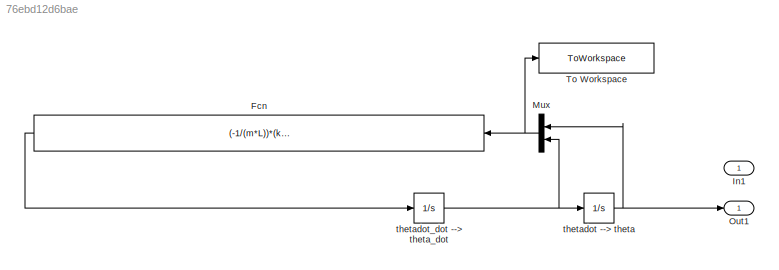
MODEL slx_76ebd12d6bae
KIND model
BLOCK [Fcn] Fcn
  Expr = (-1/(m*L))*(k*(L*u(2)-w*sin(u(1)))*sqrt(L^2*u(2)^2+w^2-2*L*w*sin(u(1))*u(2))+m*g*sin(u(1)))
BLOCK [Inport] In1
  IconDisplay = Port number
BLOCK [Mux] Mux
  DisplayOption = bar
  Inputs = 2
  Ports = [2, 1]
BLOCK [Outport] Out1
  IconDisplay = Port number
BLOCK [ToWorkspace] To Workspace
  MaxDataPoints = inf
  Ports = [1]
  SampleTime = -1
  SaveFormat = Timeseries
  VariableName = nonlinear_simout
BLOCK [Integrator] thetadot --> theta
  InitialCondition = theta0
  Ports = [1, 1]
BLOCK [Integrator] thetadot_dot --> theta_dot
  InitialCondition = theta_dot0
  Ports = [1, 1]
LINE Fcn:1 -> thetadot_dot --> theta_dot:1
NET Mux:1 -> Fcn:1, To Workspace:1
NET thetadot --> theta:1 -> Mux:1, Out1:1
NET thetadot_dot --> theta_dot:1 -> Mux:2, thetadot --> theta:1
note: NET lines group one-source signal fan-out (src -> all destinations, sorted); 1:1 wires keep LINE
